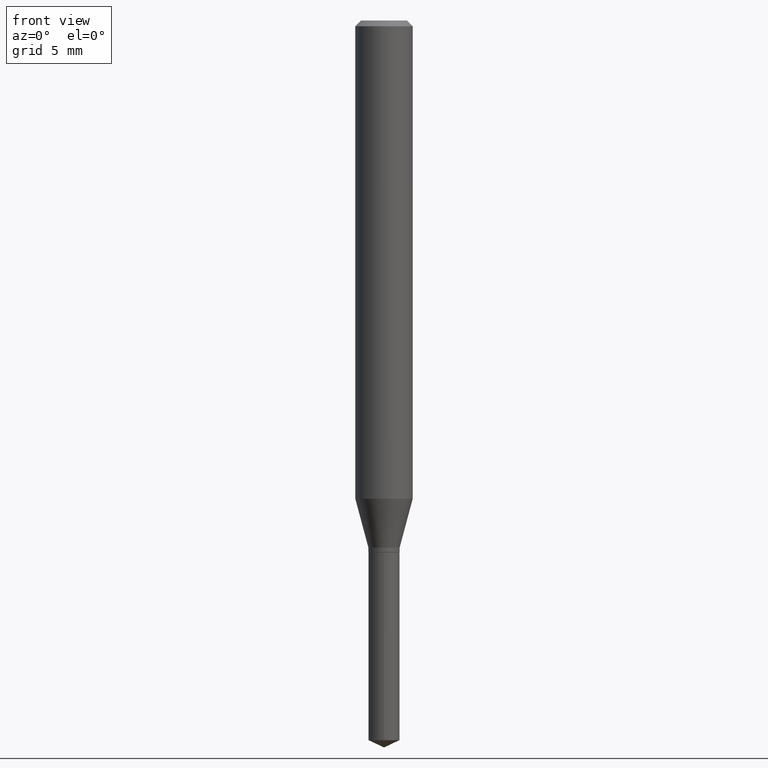
[diagram: clean part render]
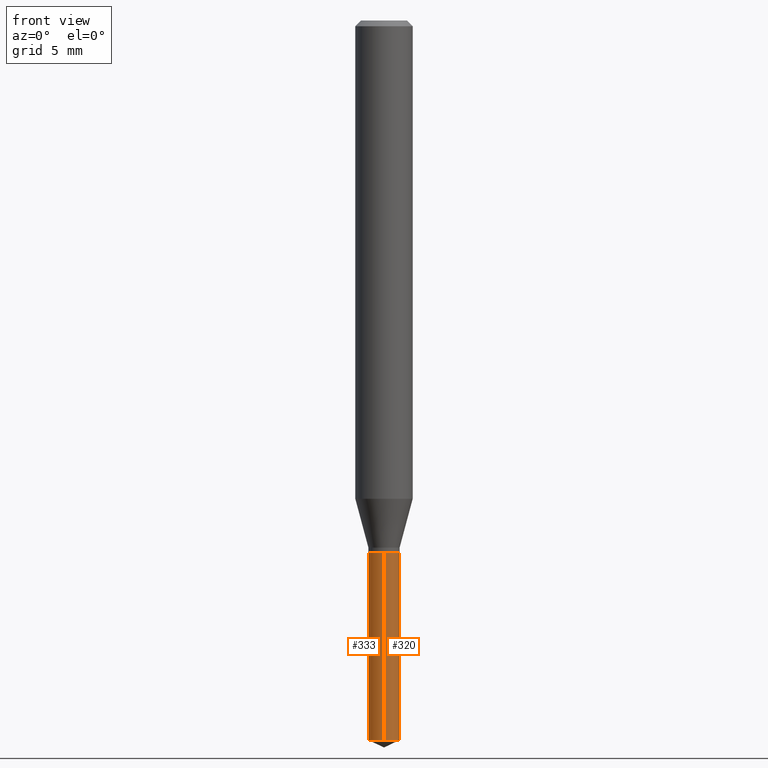
[diagram: same view with one multi-face feature highlighted, each face labeled with its STEP entity id]
A machine part, front view. The highlighted faces form ONE feature: a constant-radius fillet chain: 2 tangent blend faces with common blend radius 0.8153 mm. The faces share edges in the B-rep.
Their STEP definitions:
[1] entity #333 (Cylinder):
#23 = AXIS2_PLACEMENT_3D ( 'NONE', #142, #59, #362 ) ;
#34 = CARTESIAN_POINT ( 'NONE',  ( -2.241531019537023721E-16, -0.03210000000000381992, -1.094499999999999806 ) ) ;
#59 = DIRECTION ( 'NONE',  ( -2.445470214571802116E-29, 3.491479321953280158E-15, 1.000000000000000000 ) ) ;
#74 = CARTESIAN_POINT ( 'NONE',  ( 2.280842181790283737E-16, 0.03209999999999482712, -1.481131524173224578 ) ) ;
#81 = CARTESIAN_POINT ( 'NONE',  ( -2.241531019537023721E-16, -0.03210000000000381992, -1.094499999999999806 ) ) ;
#85 = VERTEX_POINT ( 'NONE', #306 ) ;
#88 = DIRECTION ( 'NONE',  ( -2.445470214571802396E-29, 3.491479321953280158E-15, 1.000000000000000000 ) ) ;
#106 = CARTESIAN_POINT ( 'NONE',  ( 3.622061484749750014E-29, -5.171342297229916227E-15, -1.481131524173224578 ) ) ;
#111 = VECTOR ( 'NONE', #113, 39.37007874015748143 ) ;
#113 = DIRECTION ( 'NONE',  ( -2.445470214571802396E-29, 3.491479321953280158E-15, 1.000000000000000000 ) ) ;
#121 = VERTEX_POINT ( 'NONE', #34 ) ;
#142 = CARTESIAN_POINT ( 'NONE',  ( 2.676565608369631794E-29, -3.821426325363822773E-15, -1.094499999999999806 ) ) ;
#151 = DIRECTION ( 'NONE',  ( -2.445470214571802116E-29, 3.491479321953280158E-15, 1.000000000000000000 ) ) ;
#154 = CIRCLE ( 'NONE', #367, 0.03209999999999999659 ) ;
#173 = CARTESIAN_POINT ( 'NONE',  ( -2.241531019536929551E-16, -0.03210000000000517301, -1.481131524173224578 ) ) ;
#185 = CIRCLE ( 'NONE', #23, 0.03209999999999999659 ) ;
#189 = CYLINDRICAL_SURFACE ( 'NONE', #430, 0.03209999999999999659 ) ;
#198 = EDGE_CURVE ( 'NONE', #85, #121, #185, .T. ) ;
#265 = CARTESIAN_POINT ( 'NONE',  ( 2.280842181790188581E-16, 0.03209999999999617326, -1.094500000000000028 ) ) ;
#266 = DIRECTION ( 'NONE',  ( -6.982962677686265133E-15, -1.000000000000000000, 4.255214943402279650E-15 ) ) ;
#267 = DIRECTION ( 'NONE',  ( -6.982962677686265133E-15, -1.000000000000000000, 0.000000000000000000 ) ) ;
#274 = VERTEX_POINT ( 'NONE', #173 ) ;
#288 = EDGE_CURVE ( 'NONE', #347, #274, #154, .T. ) ;
#306 = CARTESIAN_POINT ( 'NONE',  ( 2.280842181790284230E-16, 0.03209999999999617326, -1.094500000000000028 ) ) ;
#308 = ORIENTED_EDGE ( 'NONE', *, *, #198, .F. ) ;
#314 = EDGE_CURVE ( 'NONE', #347, #85, #479, .T. ) ;
#333 = ADVANCED_FACE ( 'NONE', ( #486 ), #189, .T. ) ;
#342 = ORIENTED_EDGE ( 'NONE', *, *, #288, .T. ) ;
#347 = VERTEX_POINT ( 'NONE', #74 ) ;
#359 = VECTOR ( 'NONE', #88, 39.37007874015748143 ) ;
#362 = DIRECTION ( 'NONE',  ( -6.982962677686265133E-15, -1.000000000000000000, 4.255214943402279650E-15 ) ) ;
#367 = AXIS2_PLACEMENT_3D ( 'NONE', #106, #417, #267 ) ;
#401 = ORIENTED_EDGE ( 'NONE', *, *, #314, .F. ) ;
#414 = CARTESIAN_POINT ( 'NONE',  ( 2.676565608369631794E-29, -3.821426325363822773E-15, -1.094499999999999806 ) ) ;
#417 = DIRECTION ( 'NONE',  ( -2.445470214571802116E-29, 3.491479321953280158E-15, 1.000000000000000000 ) ) ;
#429 = LINE ( 'NONE', #81, #359 ) ;
#430 = AXIS2_PLACEMENT_3D ( 'NONE', #414, #151, #266 ) ;
#433 = ORIENTED_EDGE ( 'NONE', *, *, #484, .T. ) ;
#476 = EDGE_LOOP ( 'NONE', ( #401, #342, #433, #308 ) ) ;
#479 = LINE ( 'NONE', #265, #111 ) ;
#484 = EDGE_CURVE ( 'NONE', #274, #121, #429, .T. ) ;
#486 = FACE_OUTER_BOUND ( 'NONE', #476, .T. ) ;
[2] entity #320 (Cylinder):
#30 = CIRCLE ( 'NONE', #309, 0.03209999999999999659 ) ;
#34 = CARTESIAN_POINT ( 'NONE',  ( -2.241531019537023721E-16, -0.03210000000000381992, -1.094499999999999806 ) ) ;
#36 = ORIENTED_EDGE ( 'NONE', *, *, #314, .T. ) ;
#47 = AXIS2_PLACEMENT_3D ( 'NONE', #341, #147, #377 ) ;
#50 = DIRECTION ( 'NONE',  ( -6.982962677686265133E-15, -1.000000000000000000, 4.255214943402279650E-15 ) ) ;
#55 = ORIENTED_EDGE ( 'NONE', *, *, #416, .F. ) ;
#57 = CIRCLE ( 'NONE', #47, 0.03209999999999999659 ) ;
#74 = CARTESIAN_POINT ( 'NONE',  ( 2.280842181790283737E-16, 0.03209999999999482712, -1.481131524173224578 ) ) ;
#81 = CARTESIAN_POINT ( 'NONE',  ( -2.241531019537023721E-16, -0.03210000000000381992, -1.094499999999999806 ) ) ;
#85 = VERTEX_POINT ( 'NONE', #306 ) ;
#88 = DIRECTION ( 'NONE',  ( -2.445470214571802396E-29, 3.491479321953280158E-15, 1.000000000000000000 ) ) ;
#111 = VECTOR ( 'NONE', #113, 39.37007874015748143 ) ;
#113 = DIRECTION ( 'NONE',  ( -2.445470214571802396E-29, 3.491479321953280158E-15, 1.000000000000000000 ) ) ;
#117 = DIRECTION ( 'NONE',  ( -6.982962677686265133E-15, -1.000000000000000000, 4.255214943402279650E-15 ) ) ;
#119 = DIRECTION ( 'NONE',  ( -2.445470214571802116E-29, 3.491479321953280158E-15, 1.000000000000000000 ) ) ;
#121 = VERTEX_POINT ( 'NONE', #34 ) ;
#147 = DIRECTION ( 'NONE',  ( -2.445470214571802116E-29, 3.491479321953280158E-15, 1.000000000000000000 ) ) ;
#173 = CARTESIAN_POINT ( 'NONE',  ( -2.241531019536929551E-16, -0.03210000000000517301, -1.481131524173224578 ) ) ;
#184 = CARTESIAN_POINT ( 'NONE',  ( 2.676565608369631794E-29, -3.821426325363822773E-15, -1.094499999999999806 ) ) ;
#210 = ORIENTED_EDGE ( 'NONE', *, *, #484, .F. ) ;
#265 = CARTESIAN_POINT ( 'NONE',  ( 2.280842181790188581E-16, 0.03209999999999617326, -1.094500000000000028 ) ) ;
#274 = VERTEX_POINT ( 'NONE', #173 ) ;
#282 = EDGE_LOOP ( 'NONE', ( #286, #36, #55, #210 ) ) ;
#286 = ORIENTED_EDGE ( 'NONE', *, *, #295, .T. ) ;
#295 = EDGE_CURVE ( 'NONE', #274, #347, #57, .T. ) ;
#298 = DIRECTION ( 'NONE',  ( -2.445470214571802116E-29, 3.491479321953280158E-15, 1.000000000000000000 ) ) ;
#306 = CARTESIAN_POINT ( 'NONE',  ( 2.280842181790284230E-16, 0.03209999999999617326, -1.094500000000000028 ) ) ;
#309 = AXIS2_PLACEMENT_3D ( 'NONE', #184, #119, #50 ) ;
#314 = EDGE_CURVE ( 'NONE', #347, #85, #479, .T. ) ;
#320 = ADVANCED_FACE ( 'NONE', ( #408 ), #338, .T. ) ;
#336 = AXIS2_PLACEMENT_3D ( 'NONE', #454, #298, #117 ) ;
#338 = CYLINDRICAL_SURFACE ( 'NONE', #336, 0.03209999999999999659 ) ;
#341 = CARTESIAN_POINT ( 'NONE',  ( 3.622061484749750014E-29, -5.171342297229916227E-15, -1.481131524173224578 ) ) ;
#347 = VERTEX_POINT ( 'NONE', #74 ) ;
#359 = VECTOR ( 'NONE', #88, 39.37007874015748143 ) ;
#377 = DIRECTION ( 'NONE',  ( -6.982962677686265133E-15, -1.000000000000000000, 0.000000000000000000 ) ) ;
#408 = FACE_OUTER_BOUND ( 'NONE', #282, .T. ) ;
#416 = EDGE_CURVE ( 'NONE', #121, #85, #30, .T. ) ;
#429 = LINE ( 'NONE', #81, #359 ) ;
#454 = CARTESIAN_POINT ( 'NONE',  ( 2.676565608369631794E-29, -3.821426325363822773E-15, -1.094499999999999806 ) ) ;
#479 = LINE ( 'NONE', #265, #111 ) ;
#484 = EDGE_CURVE ( 'NONE', #274, #121, #429, .T. ) ;